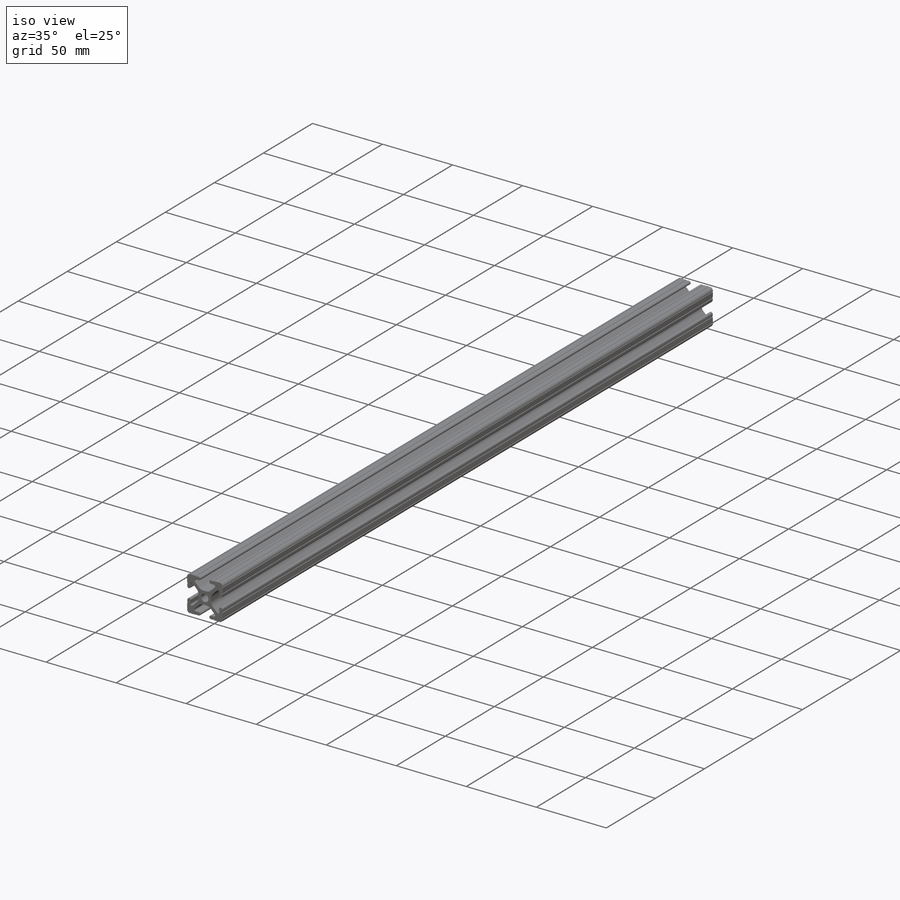
[diagram: iso view]
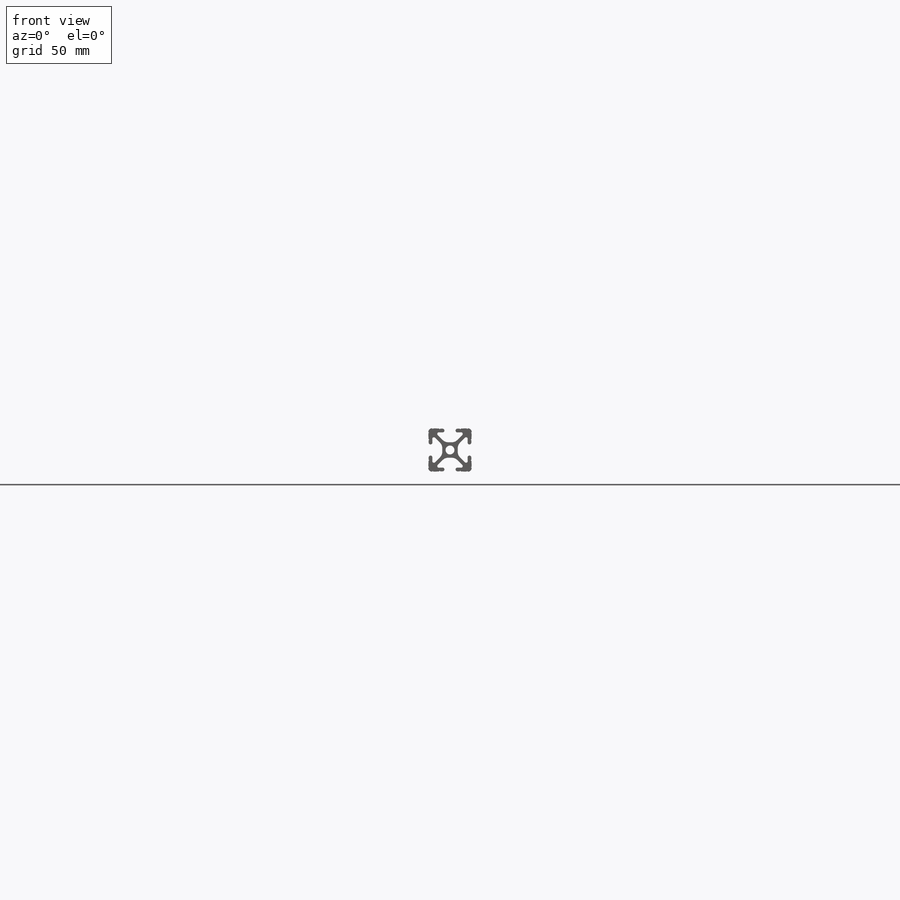
[diagram: front view]
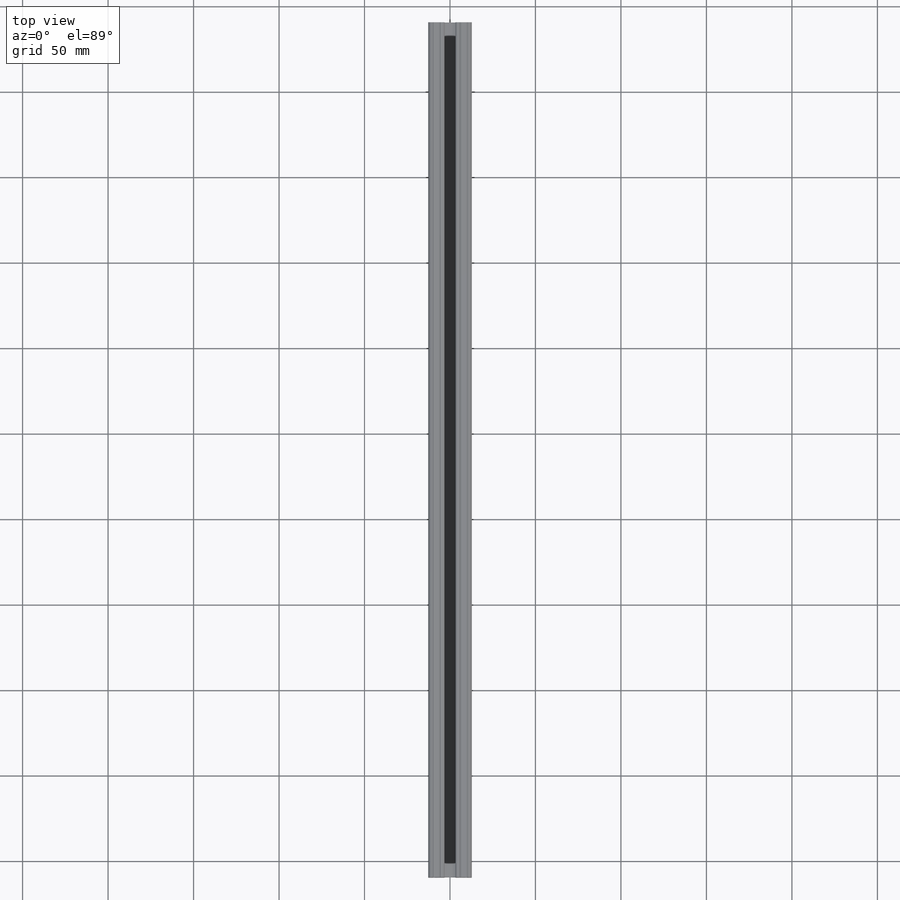
[diagram: top view]
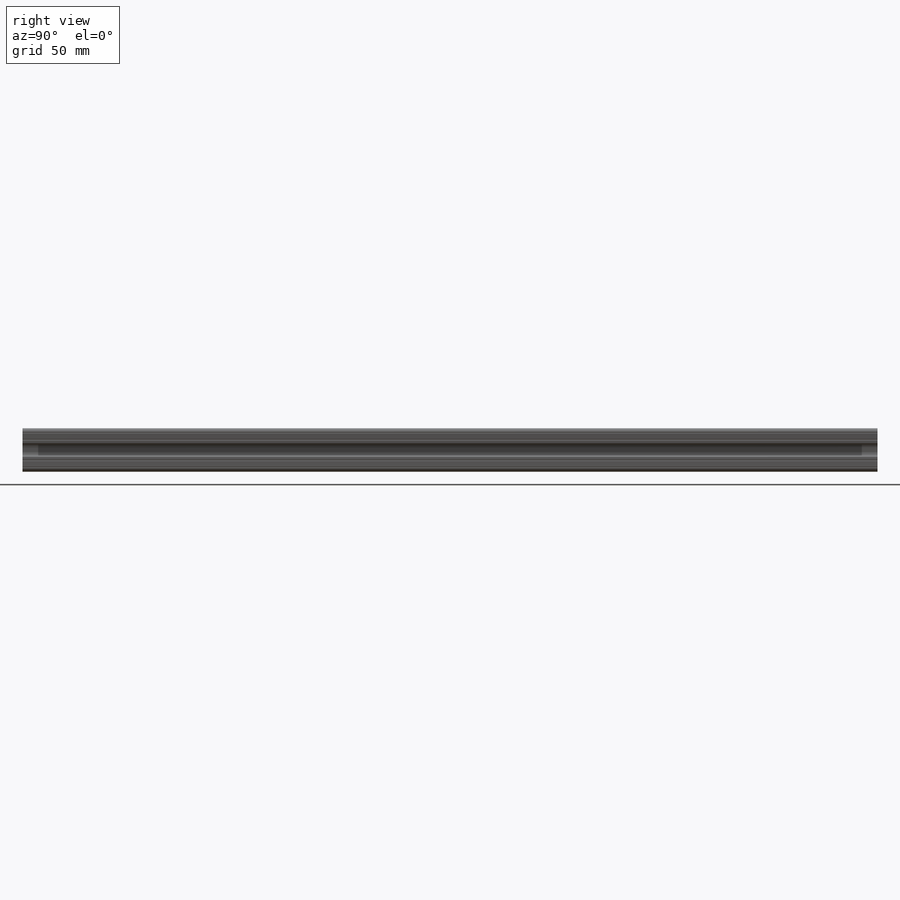
[diagram: right view]
SOLIDWORKS PART (.sldprt)
format: sldprt  version: not decoded by parser v0  size: 439,808 bytes
history: native  units: mm
features: sketch x3, material x1, extrude x1, cut_extrude x1 (+12 scaffold rows collapsed)
feature tree (18):
  scaffold x12  (default folders/planes/origin — collapsed)
  material  "6063-T5"
  sketch  "Sketch1"  dims[c1.D1=5.207mm c1.D5=1.778mm c1.D9=1.778mm c1.D2=~1.062229mm c1.D12=~1.925691mm c1.D10=2.2098mm c2.D2=26.162mm c2.D3=9.017mm c2.D4=9.017mm c2.D5=2.2098mm c2.D6=6.477mm c3.D5=2.2098mm c3.D6=~10.351482mm c4.D6=2.0deg c4.D7=6.477mm c4.D8=2.2098mm c4.D5=14.859mm c4.D2=12.7mm c5.D6=25.4mm c5.D9=~7.600934mm c6.D9=2.0deg c6.D10=13.081mm c7.D10=45.0deg c7.D2=25.4mm c7.D11=12.7mm c7.D12=~0.631371mm c7.D13=~0.55245mm]
  sketch  "Sketch3"  dims[D2=4.4196mm D1=0.0mm]
  extrude  "Extrude1"  Depth=1219.2mm length=1219.2mm
  sketch  "Sketch5"  dims[D1=0.0mm D2=719.2mm]
  cut_extrude  "Cut-Extrude1"  Depth=34mm
decode coverage: 5 of 5 modeling features carry decoded parameters
note: ~ marks probable driven/reference dimensions
note: suppression state not decoded; provenance and decode notes live in map.json
